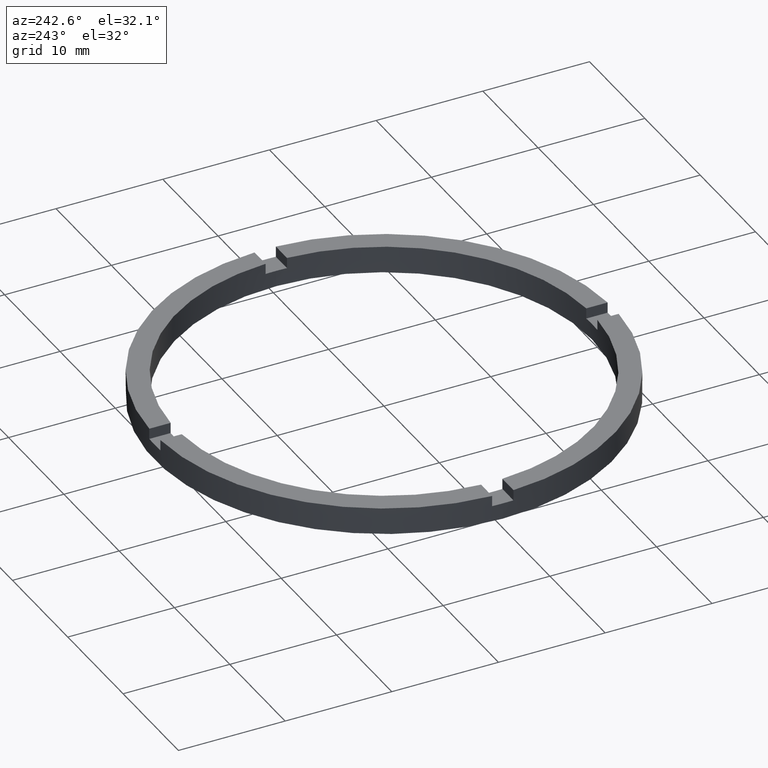
[diagram: clean part render]
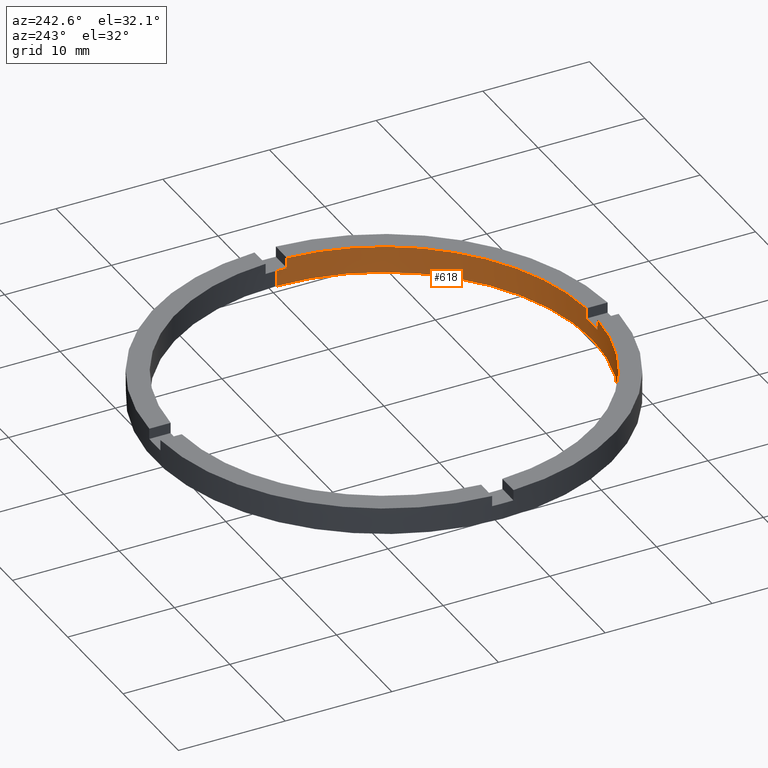
[diagram: same view with one face highlighted and labeled with its STEP entity id]
A machine part, auxiliary view. The second image highlights one B-rep face of the part: STEP entity #618.
In plain terms, the highlighted cylindrical surface (partial cylindrical patch) has radius 19.5 mm, axis along (-0, -0, -1).
Its self-contained STEP definition (entity closure, byte-faithful):
#5 = CARTESIAN_POINT ( 'NONE',  ( -19.50000000000000000, 0.000000000000000000, 1.500000000000000000 ) ) ;
#7 = LINE ( 'NONE', #99, #261 ) ;
#15 = CARTESIAN_POINT ( 'NONE',  ( 0.000000000000000000, 0.000000000000000000, 1.500000000000000000 ) ) ;
#16 = DIRECTION ( 'NONE',  ( -0.000000000000000000, 0.000000000000000000, 1.000000000000000000 ) ) ;
#22 = DIRECTION ( 'NONE',  ( 0.000000000000000000, 0.000000000000000000, 1.000000000000000000 ) ) ;
#23 = CARTESIAN_POINT ( 'NONE',  ( -19.50000000000000000, 0.000000000000000000, 2.500000000000000000 ) ) ;
#27 = DIRECTION ( 'NONE',  ( 0.000000000000000000, 0.000000000000000000, 1.000000000000000000 ) ) ;
#40 = AXIS2_PLACEMENT_3D ( 'NONE', #502, #16, #122 ) ;
#51 = CARTESIAN_POINT ( 'NONE',  ( 0.000000000000000000, 0.000000000000000000, 2.500000000000000000 ) ) ;
#58 = CARTESIAN_POINT ( 'NONE',  ( -19.50000000000000000, 0.000000000000000000, 0.000000000000000000 ) ) ;
#61 = CARTESIAN_POINT ( 'NONE',  ( 0.000000000000000000, 0.000000000000000000, 0.000000000000000000 ) ) ;
#68 = CARTESIAN_POINT ( 'NONE',  ( 19.47434209415044037, -1.000000000000158096, 1.500000000000000000 ) ) ;
#69 = EDGE_CURVE ( 'NONE', #382, #695, #430, .T. ) ;
#71 = DIRECTION ( 'NONE',  ( 1.000000000000000000, 0.000000000000000000, 0.000000000000000000 ) ) ;
#75 = EDGE_CURVE ( 'NONE', #83, #695, #162, .T. ) ;
#83 = VERTEX_POINT ( 'NONE', #462 ) ;
#87 = EDGE_CURVE ( 'NONE', #450, #108, #163, .T. ) ;
#98 = ORIENTED_EDGE ( 'NONE', *, *, #459, .T. ) ;
#99 = CARTESIAN_POINT ( 'NONE',  ( -19.47434209415044748, -1.000000000000024647, 2.500000000000000000 ) ) ;
#108 = VERTEX_POINT ( 'NONE', #268 ) ;
#116 = ORIENTED_EDGE ( 'NONE', *, *, #349, .T. ) ;
#122 = DIRECTION ( 'NONE',  ( 1.000000000000000000, 0.000000000000000000, 0.000000000000000000 ) ) ;
#123 = VERTEX_POINT ( 'NONE', #172 ) ;
#126 = AXIS2_PLACEMENT_3D ( 'NONE', #51, #196, #523 ) ;
#137 = DIRECTION ( 'NONE',  ( 0.000000000000000000, 0.000000000000000000, 1.000000000000000000 ) ) ;
#161 = VERTEX_POINT ( 'NONE', #545 ) ;
#162 = LINE ( 'NONE', #699, #701 ) ;
#163 = CIRCLE ( 'NONE', #212, 19.50000000000000000 ) ;
#164 = VERTEX_POINT ( 'NONE', #236 ) ;
#172 = CARTESIAN_POINT ( 'NONE',  ( -19.47434209415044748, -1.000000000000024647, 1.500000000000000000 ) ) ;
#174 = CIRCLE ( 'NONE', #40, 19.50000000000000000 ) ;
#180 = CARTESIAN_POINT ( 'NONE',  ( 0.000000000000000000, 0.000000000000000000, 2.500000000000000000 ) ) ;
#186 = EDGE_CURVE ( 'NONE', #675, #634, #454, .T. ) ;
#190 = DIRECTION ( 'NONE',  ( -0.000000000000000000, -0.000000000000000000, -1.000000000000000000 ) ) ;
#196 = DIRECTION ( 'NONE',  ( 0.000000000000000000, 0.000000000000000000, 1.000000000000000000 ) ) ;
#200 = DIRECTION ( 'NONE',  ( 1.000000000000000000, 0.000000000000000000, 0.000000000000000000 ) ) ;
#212 = AXIS2_PLACEMENT_3D ( 'NONE', #61, #309, #383 ) ;
#213 = FACE_OUTER_BOUND ( 'NONE', #465, .T. ) ;
#214 = CYLINDRICAL_SURFACE ( 'NONE', #494, 19.50000000000000000 ) ;
#219 = LINE ( 'NONE', #663, #755 ) ;
#228 = AXIS2_PLACEMENT_3D ( 'NONE', #15, #27, #71 ) ;
#232 = DIRECTION ( 'NONE',  ( -1.000000000000000000, 0.000000000000000000, 0.000000000000000000 ) ) ;
#236 = CARTESIAN_POINT ( 'NONE',  ( 0.9999999999998384625, -19.47434209415045814, 1.500000000000000000 ) ) ;
#248 = VECTOR ( 'NONE', #504, 1000.000000000000000 ) ;
#249 = EDGE_CURVE ( 'NONE', #83, #164, #174, .T. ) ;
#261 = VECTOR ( 'NONE', #417, 1000.000000000000000 ) ;
#268 = CARTESIAN_POINT ( 'NONE',  ( 19.50000000000000000, 2.388061258337338939E-15, 0.000000000000000000 ) ) ;
#289 = CARTESIAN_POINT ( 'NONE',  ( 19.47434209415044037, -1.000000000000158096, 2.500000000000000000 ) ) ;
#309 = DIRECTION ( 'NONE',  ( 0.000000000000000000, 0.000000000000000000, 1.000000000000000000 ) ) ;
#334 = CARTESIAN_POINT ( 'NONE',  ( 0.000000000000000000, 0.000000000000000000, 1.500000000000000000 ) ) ;
#341 = CARTESIAN_POINT ( 'NONE',  ( 19.50000000000000000, 2.388061258337338939E-15, 1.500000000000000000 ) ) ;
#342 = ORIENTED_EDGE ( 'NONE', *, *, #470, .T. ) ;
#349 = EDGE_CURVE ( 'NONE', #622, #108, #514, .T. ) ;
#370 = ORIENTED_EDGE ( 'NONE', *, *, #69, .T. ) ;
#371 = ORIENTED_EDGE ( 'NONE', *, *, #445, .F. ) ;
#375 = ORIENTED_EDGE ( 'NONE', *, *, #186, .F. ) ;
#378 = ORIENTED_EDGE ( 'NONE', *, *, #249, .T. ) ;
#382 = VERTEX_POINT ( 'NONE', #582 ) ;
#383 = DIRECTION ( 'NONE',  ( 1.000000000000000000, 0.000000000000000000, 0.000000000000000000 ) ) ;
#385 = CARTESIAN_POINT ( 'NONE',  ( 19.50000000000000000, 2.388061258337338939E-15, 2.500000000000000000 ) ) ;
#417 = DIRECTION ( 'NONE',  ( -0.000000000000000000, -0.000000000000000000, -1.000000000000000000 ) ) ;
#424 = DIRECTION ( 'NONE',  ( 0.000000000000000000, 0.000000000000000000, 1.000000000000000000 ) ) ;
#430 = CIRCLE ( 'NONE', #126, 19.50000000000000000 ) ;
#434 = DIRECTION ( 'NONE',  ( -0.000000000000000000, -0.000000000000000000, -1.000000000000000000 ) ) ;
#445 = EDGE_CURVE ( 'NONE', #742, #450, #503, .T. ) ;
#450 = VERTEX_POINT ( 'NONE', #58 ) ;
#451 = VECTOR ( 'NONE', #551, 1000.000000000000000 ) ;
#454 = LINE ( 'NONE', #289, #451 ) ;
#459 = EDGE_CURVE ( 'NONE', #161, #634, #511, .T. ) ;
#462 = CARTESIAN_POINT ( 'NONE',  ( -1.000000000000161648, -19.47434209415043682, 1.500000000000000000 ) ) ;
#464 = AXIS2_PLACEMENT_3D ( 'NONE', #599, #137, #200 ) ;
#465 = EDGE_LOOP ( 'NONE', ( #342, #116, #648, #371, #732, #651, #370, #724, #378, #632, #98, #375 ) ) ;
#466 = CARTESIAN_POINT ( 'NONE',  ( -1.000000000000161648, -19.47434209415043682, 2.500000000000000000 ) ) ;
#470 = EDGE_CURVE ( 'NONE', #675, #622, #518, .T. ) ;
#483 = CIRCLE ( 'NONE', #621, 19.50000000000000000 ) ;
#485 = DIRECTION ( 'NONE',  ( 1.000000000000000000, 0.000000000000000000, 0.000000000000000000 ) ) ;
#494 = AXIS2_PLACEMENT_3D ( 'NONE', #180, #434, #232 ) ;
#502 = CARTESIAN_POINT ( 'NONE',  ( 0.000000000000000000, 0.000000000000000000, 1.500000000000000000 ) ) ;
#503 = LINE ( 'NONE', #23, #248 ) ;
#504 = DIRECTION ( 'NONE',  ( -0.000000000000000000, -0.000000000000000000, -1.000000000000000000 ) ) ;
#510 = VECTOR ( 'NONE', #516, 1000.000000000000000 ) ;
#511 = CIRCLE ( 'NONE', #464, 19.50000000000000000 ) ;
#514 = LINE ( 'NONE', #385, #510 ) ;
#516 = DIRECTION ( 'NONE',  ( -0.000000000000000000, -0.000000000000000000, -1.000000000000000000 ) ) ;
#518 = CIRCLE ( 'NONE', #228, 19.50000000000000000 ) ;
#523 = DIRECTION ( 'NONE',  ( 1.000000000000000000, 0.000000000000000000, 0.000000000000000000 ) ) ;
#541 = CARTESIAN_POINT ( 'NONE',  ( 19.47434209415044037, -1.000000000000158096, 2.500000000000000000 ) ) ;
#545 = CARTESIAN_POINT ( 'NONE',  ( 0.9999999999998384625, -19.47434209415045814, 2.500000000000000000 ) ) ;
#549 = EDGE_CURVE ( 'NONE', #382, #123, #7, .T. ) ;
#551 = DIRECTION ( 'NONE',  ( 0.000000000000000000, 0.000000000000000000, 1.000000000000000000 ) ) ;
#582 = CARTESIAN_POINT ( 'NONE',  ( -19.47434209415044748, -1.000000000000024647, 2.500000000000000000 ) ) ;
#599 = CARTESIAN_POINT ( 'NONE',  ( 0.000000000000000000, 0.000000000000000000, 2.500000000000000000 ) ) ;
#618 = ADVANCED_FACE ( 'NONE', ( #213 ), #214, .F. ) ;
#621 = AXIS2_PLACEMENT_3D ( 'NONE', #334, #424, #485 ) ;
#622 = VERTEX_POINT ( 'NONE', #341 ) ;
#626 = EDGE_CURVE ( 'NONE', #742, #123, #483, .T. ) ;
#632 = ORIENTED_EDGE ( 'NONE', *, *, #635, .F. ) ;
#634 = VERTEX_POINT ( 'NONE', #541 ) ;
#635 = EDGE_CURVE ( 'NONE', #161, #164, #219, .T. ) ;
#648 = ORIENTED_EDGE ( 'NONE', *, *, #87, .F. ) ;
#651 = ORIENTED_EDGE ( 'NONE', *, *, #549, .F. ) ;
#663 = CARTESIAN_POINT ( 'NONE',  ( 0.9999999999998384625, -19.47434209415045814, 2.500000000000000000 ) ) ;
#675 = VERTEX_POINT ( 'NONE', #68 ) ;
#695 = VERTEX_POINT ( 'NONE', #466 ) ;
#699 = CARTESIAN_POINT ( 'NONE',  ( -1.000000000000161648, -19.47434209415043682, 2.500000000000000000 ) ) ;
#701 = VECTOR ( 'NONE', #22, 1000.000000000000000 ) ;
#724 = ORIENTED_EDGE ( 'NONE', *, *, #75, .F. ) ;
#732 = ORIENTED_EDGE ( 'NONE', *, *, #626, .T. ) ;
#742 = VERTEX_POINT ( 'NONE', #5 ) ;
#755 = VECTOR ( 'NONE', #190, 1000.000000000000000 ) ;